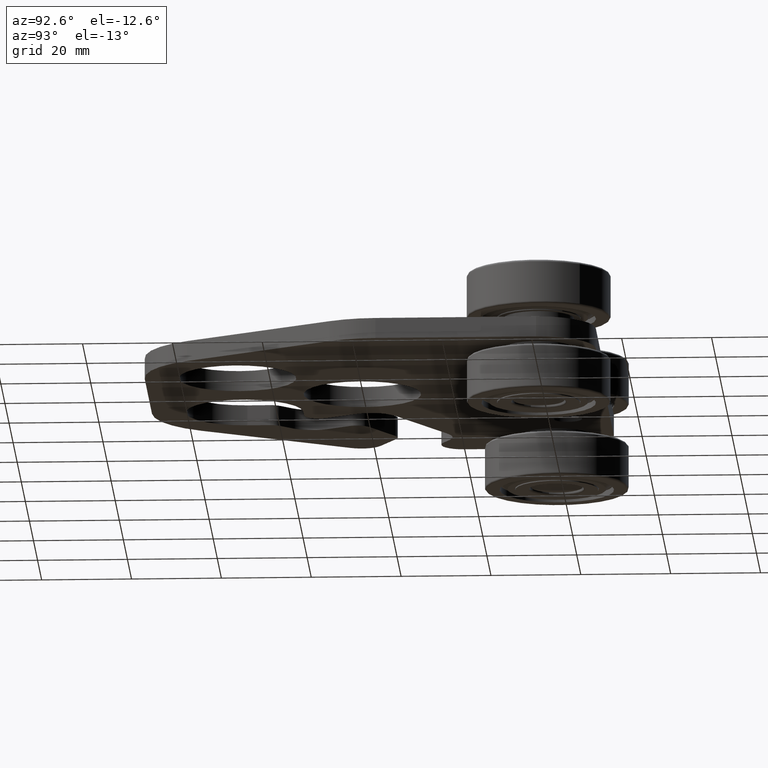
[diagram: clean part render]
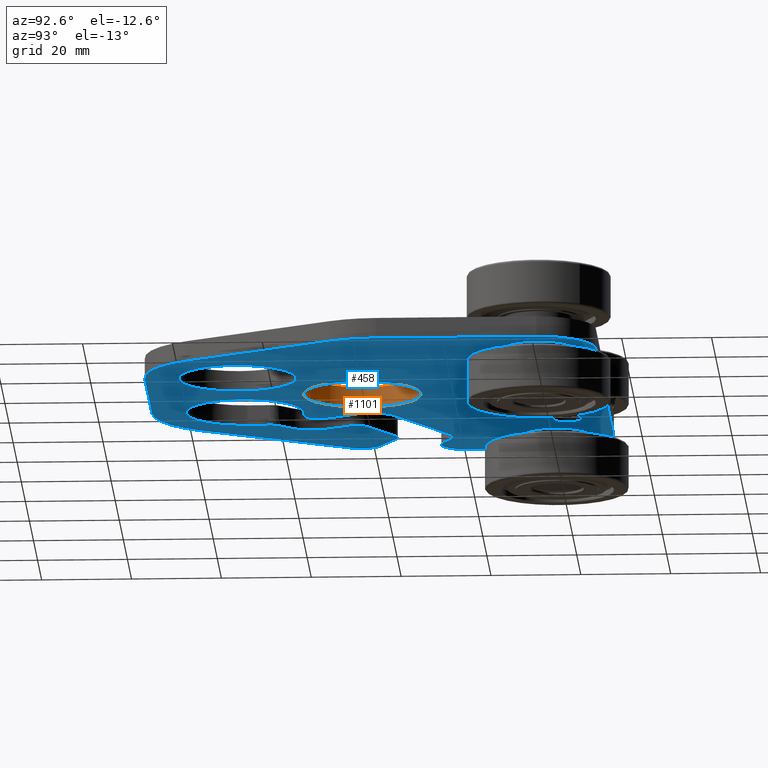
[diagram: same view with the hole feature highlighted: cylindrical wall and planar end face, labeled with their STEP entity ids]
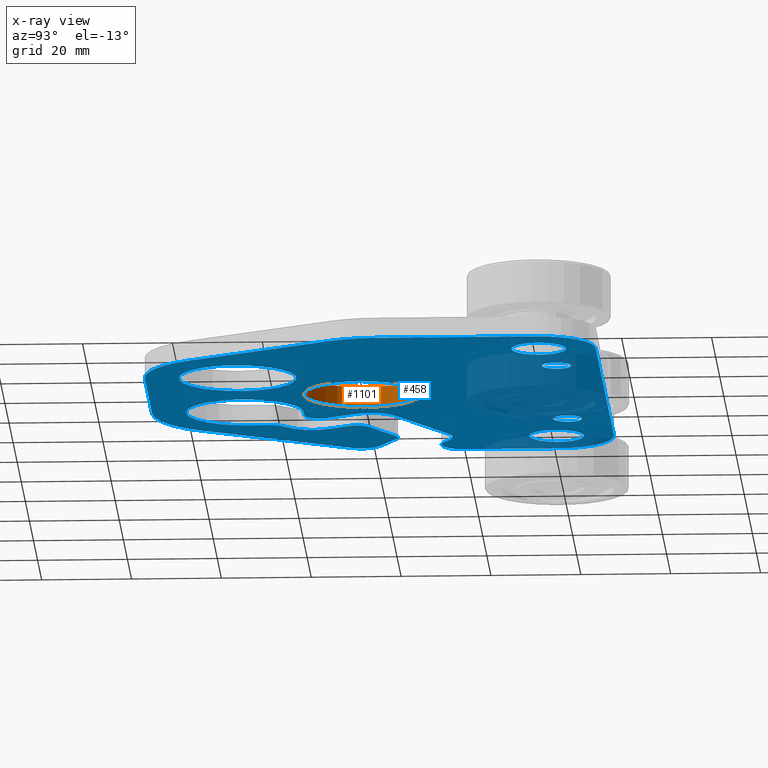
[diagram: x-ray of the same camera — body ghosted, the hole faces saturated]
A machine part, auxiliary view. The highlighted faces form one hole feature of diameter 26.162 mm: the cylindrical wall (entity #1101, orange) and its adjacent planar end face (entity #458, blue) — they share a circular edge in the B-rep.
The next image is the same camera in x-ray (body ghosted, the hole faces saturated) — the bore reads through the body.
Wall:
#436=CARTESIAN_POINT('',(0.515,-0.125,0.0));
#437=VERTEX_POINT('',#436);
#438=CARTESIAN_POINT('',(0.0,-0.125,0.0));
#439=DIRECTION('',(0.0,0.0,1.0));
#440=DIRECTION('',(-1.0,0.0,0.0));
#441=AXIS2_PLACEMENT_3D('',#438,#439,#440);
#442=CIRCLE('',#441,0.515);
#443=EDGE_CURVE('',#437,#437,#442,.T.);
#1082=CARTESIAN_POINT('',(0.0,-0.125,0.0));
#1083=DIRECTION('',(0.0,0.0,1.0));
#1084=DIRECTION('',(-1.0,0.0,0.0));
#1085=AXIS2_PLACEMENT_3D('',#1082,#1083,#1084);
#1086=CYLINDRICAL_SURFACE('',#1085,0.515);
#1087=CARTESIAN_POINT('',(0.515,-0.125,0.179));
#1088=VERTEX_POINT('',#1087);
#1089=CARTESIAN_POINT('',(0.0,-0.125,0.179));
#1090=DIRECTION('',(0.0,0.0,-1.0));
#1091=DIRECTION('',(-1.0,0.0,0.0));
#1092=AXIS2_PLACEMENT_3D('',#1089,#1090,#1091);
#1093=CIRCLE('',#1092,0.515);
#1094=EDGE_CURVE('',#1088,#1088,#1093,.T.);
#1095=ORIENTED_EDGE('',*,*,#1094,.F.);
#1096=EDGE_LOOP('',(#1095));
#1097=FACE_OUTER_BOUND('',#1096,.T.);
#1098=ORIENTED_EDGE('',*,*,#443,.F.);
#1099=EDGE_LOOP('',(#1098));
#1100=FACE_BOUND('',#1099,.T.);
#1101=ADVANCED_FACE('',(#1097,#1100),#1086,.F.);
End face:
#90=CARTESIAN_POINT('',(2.141136580732799,-0.313475448869807,0.0));
#91=VERTEX_POINT('',#90);
#98=CARTESIAN_POINT('',(2.25,0.092656240161457,0.0));
#99=VERTEX_POINT('',#98);
#100=CARTESIAN_POINT('',(1.437999999999999,0.092656240161458,0.0));
#101=DIRECTION('',(0.0,0.0,1.0));
#102=DIRECTION('',(0.965901586516694,-0.258909492225628,0.0));
#103=AXIS2_PLACEMENT_3D('',#100,#101,#102);
#104=CIRCLE('',#103,0.812);
#105=EDGE_CURVE('',#91,#99,#104,.T.);
#122=CARTESIAN_POINT('',(2.25,1.499999999999999,0.0));
#123=VERTEX_POINT('',#122);
#124=CARTESIAN_POINT('',(2.25,1.499999999999999,0.0));
#125=DIRECTION('',(0.0,-1.0,0.0));
#126=VECTOR('',#125,1.407343759838542);
#127=LINE('',#124,#126);
#128=EDGE_CURVE('',#123,#99,#127,.T.);
#147=CARTESIAN_POINT('',(-0.338697656552065,-0.003351619278209,0.0));
#148=DIRECTION('',(0.0,0.0,1.0));
#149=DIRECTION('',(1.0,0.0,0.0));
#150=AXIS2_PLACEMENT_3D('',#147,#148,#149);
#151=PLANE('',#150);
#152=ORIENTED_EDGE('',*,*,#105,.F.);
#153=CARTESIAN_POINT('',(1.401429536415542,-1.594131689031264,0.0));
#154=VERTEX_POINT('',#153);
#155=CARTESIAN_POINT('',(2.141136580732799,-0.313475448869807,0.0));
#156=DIRECTION('',(-0.500162178609932,-0.865931749670935,0.0));
#157=VECTOR('',#156,1.478934385588844);
#158=LINE('',#155,#157);
#159=EDGE_CURVE('',#91,#154,#158,.T.);
#160=ORIENTED_EDGE('',*,*,#159,.T.);
#161=CARTESIAN_POINT('',(0.698292955682743,-1.999999999999999,0.0));
#162=VERTEX_POINT('',#161);
#163=CARTESIAN_POINT('',(0.698292955682742,-1.187999999999999,0.0));
#164=DIRECTION('',(0.0,0.0,1.0));
#165=DIRECTION('',(0.499918904118492,-0.866072219451106,0.0));
#166=AXIS2_PLACEMENT_3D('',#163,#164,#165);
#167=CIRCLE('',#166,0.812);
#168=EDGE_CURVE('',#162,#154,#167,.T.);
#169=ORIENTED_EDGE('',*,*,#168,.F.);
#170=CARTESIAN_POINT('',(-0.701954139889034,-2.0,0.0));
#171=VERTEX_POINT('',#170);
#172=CARTESIAN_POINT('',(0.698292955682743,-2.0,0.0));
#173=DIRECTION('',(-1.0,0.0,0.0));
#174=VECTOR('',#173,1.400247095571777);
#175=LINE('',#172,#174);
#176=EDGE_CURVE('',#162,#171,#175,.T.);
#177=ORIENTED_EDGE('',*,*,#176,.T.);
#178=CARTESIAN_POINT('',(-1.402322155518825,-1.598887627804476,0.0));
#179=VERTEX_POINT('',#178);
#180=CARTESIAN_POINT('',(-0.701954139889035,-1.188,0.0));
#181=DIRECTION('',(0.0,0.0,1.0));
#182=DIRECTION('',(-0.496981264201868,-0.867761270760751,0.0));
#183=AXIS2_PLACEMENT_3D('',#180,#181,#182);
#184=CIRCLE('',#183,0.812);
#185=EDGE_CURVE('',#179,#171,#184,.T.);
#186=ORIENTED_EDGE('',*,*,#185,.F.);
#187=CARTESIAN_POINT('',(-2.152791142125297,-0.319694876857528,0.0));
#188=VERTEX_POINT('',#187);
#189=CARTESIAN_POINT('',(-1.402322155518825,-1.598887627804476,0.0));
#190=DIRECTION('',(-0.506019246064626,0.862522186736195,0.0));
#191=VECTOR('',#190,1.483083879601341);
#192=LINE('',#189,#191);
#193=EDGE_CURVE('',#179,#188,#192,.T.);
#194=ORIENTED_EDGE('',*,*,#193,.T.);
#195=CARTESIAN_POINT('',(-2.082244342010478,-0.060392342841847,0.0));
#196=VERTEX_POINT('',#195);
#197=CARTESIAN_POINT('',(-1.990636971018892,-0.224563258597378,0.0));
#198=DIRECTION('',(0.0,0.0,1.0));
#199=DIRECTION('',(-0.964926180845891,0.262521362022529,0.0));
#200=AXIS2_PLACEMENT_3D('',#197,#198,#199);
#201=CIRCLE('',#200,0.188);
#202=EDGE_CURVE('',#196,#188,#201,.T.);
#203=ORIENTED_EDGE('',*,*,#202,.F.);
#204=CARTESIAN_POINT('',(-1.811926201531746,0.090445179545285,0.0));
#205=VERTEX_POINT('',#204);
#206=CARTESIAN_POINT('',(-2.082244342010478,-0.060392342841847,0.0));
#207=DIRECTION('',(0.873249551891125,0.487273249955248,0.0));
#208=VECTOR('',#207,0.30955428478987);
#209=LINE('',#206,#208);
#210=EDGE_CURVE('',#196,#205,#209,.T.);
#211=ORIENTED_EDGE('',*,*,#210,.T.);
#212=CARTESIAN_POINT('',(-1.688569066809053,0.089572179010027,0.0));
#213=VERTEX_POINT('',#212);
#214=CARTESIAN_POINT('',(-1.751017045287341,-0.018711014441105,0.0));
#215=DIRECTION('',(0.0,0.0,1.0));
#216=DIRECTION('',(0.007076839748981,0.999974958856054,0.0));
#217=AXIS2_PLACEMENT_3D('',#214,#215,#216);
#218=CIRCLE('',#217,0.125);
#219=EDGE_CURVE('',#213,#205,#218,.T.);
#220=ORIENTED_EDGE('',*,*,#219,.F.);
#221=CARTESIAN_POINT('',(-1.317247552207251,-0.124572576176225,0.0));
#222=VERTEX_POINT('',#221);
#223=CARTESIAN_POINT('',(-1.688569066809053,0.089572179010027,0.0));
#224=DIRECTION('',(0.86626554760906,-0.499583827826297,0.0));
#225=VECTOR('',#224,0.42864629169043);
#226=LINE('',#223,#225);
#227=EDGE_CURVE('',#213,#222,#226,.T.);
#228=ORIENTED_EDGE('',*,*,#227,.T.);
#229=CARTESIAN_POINT('',(-1.271391785064688,-0.295268097612254,0.0));
#230=VERTEX_POINT('',#229);
#231=CARTESIAN_POINT('',(-1.379695530685538,-0.232855769627357,0.0));
#232=DIRECTION('',(0.0,0.0,1.0));
#233=DIRECTION('',(0.96575866402447,0.259442099246964,0.0));
#234=AXIS2_PLACEMENT_3D('',#231,#232,#233);
#235=CIRCLE('',#234,0.125);
#236=EDGE_CURVE('',#230,#222,#235,.T.);
#237=ORIENTED_EDGE('',*,*,#236,.F.);
#238=CARTESIAN_POINT('',(-1.385120899541725,-0.492621560969464,0.0));
#239=VERTEX_POINT('',#238);
#240=CARTESIAN_POINT('',(-1.271391785064688,-0.295268097612254,0.0));
#241=DIRECTION('',(-0.499298623879171,-0.866429964966798,0.0));
#242=VECTOR('',#241,0.227777744696045);
#243=LINE('',#240,#242);
#244=EDGE_CURVE('',#230,#239,#243,.T.);
#245=ORIENTED_EDGE('',*,*,#244,.T.);
#246=CARTESIAN_POINT('',(-1.344972446331923,-0.794539999712277,0.0));
#247=VERTEX_POINT('',#246);
#248=CARTESIAN_POINT('',(-1.168513408300026,-0.617446216939257,0.0));
#249=DIRECTION('',(0.0,0.0,-1.0));
#250=DIRECTION('',(-0.991274008714217,-0.131817448191223,0.0));
#251=AXIS2_PLACEMENT_3D('',#248,#249,#250);
#252=CIRCLE('',#251,0.25);
#253=EDGE_CURVE('',#247,#239,#252,.T.);
#254=ORIENTED_EDGE('',*,*,#253,.F.);
#255=CARTESIAN_POINT('',(-1.23877048098405,-0.900361312854602,0.0));
#256=VERTEX_POINT('',#255);
#257=CARTESIAN_POINT('',(-1.344972446331923,-0.794539999712277,0.0));
#258=DIRECTION('',(0.708375131092078,-0.705836152127589,0.0));
#259=VECTOR('',#258,0.149923339607003);
#260=LINE('',#257,#259);
#261=EDGE_CURVE('',#247,#256,#260,.T.);
#262=ORIENTED_EDGE('',*,*,#261,.T.);
#263=CARTESIAN_POINT('',(-1.201999999999999,-0.988908204241111,0.0));
#264=VERTEX_POINT('',#263);
#265=CARTESIAN_POINT('',(-1.326999999999999,-0.988908204241111,0.0));
#266=DIRECTION('',(0.0,0.0,1.0));
#267=DIRECTION('',(0.923535638762141,0.383512612486481,0.0));
#268=AXIS2_PLACEMENT_3D('',#265,#266,#267);
#269=CIRCLE('',#268,0.125);
#270=EDGE_CURVE('',#264,#256,#269,.T.);
#271=ORIENTED_EDGE('',*,*,#270,.F.);
#272=CARTESIAN_POINT('',(-1.201999999999999,-1.187,0.0));
#273=VERTEX_POINT('',#272);
#274=CARTESIAN_POINT('',(-1.201999999999999,-0.988908204241111,0.0));
#275=DIRECTION('',(0.0,-1.0,0.0));
#276=VECTOR('',#275,0.198091795758889);
#277=LINE('',#274,#276);
#278=EDGE_CURVE('',#264,#273,#277,.T.);
#279=ORIENTED_EDGE('',*,*,#278,.T.);
#280=CARTESIAN_POINT('',(-0.686999999999999,-0.672,0.0));
#281=VERTEX_POINT('',#280);
#282=CARTESIAN_POINT('',(-0.686999999999999,-1.187,0.0));
#283=DIRECTION('',(0.0,0.0,1.0));
#284=DIRECTION('',(-1.0,0.0,0.0));
#285=AXIS2_PLACEMENT_3D('',#282,#283,#284);
#286=CIRCLE('',#285,0.515);
#287=EDGE_CURVE('',#273,#281,#286,.T.);
#288=ORIENTED_EDGE('',*,*,#287,.T.);
#289=CARTESIAN_POINT('',(-0.838487895917298,-0.672,0.0));
#290=VERTEX_POINT('',#289);
#291=CARTESIAN_POINT('',(-0.686999999999999,-0.672,0.0));
#292=DIRECTION('',(-1.0,0.0,0.0));
#293=VECTOR('',#292,0.151487895917299);
#294=LINE('',#291,#293);
#295=EDGE_CURVE('',#281,#290,#294,.T.);
#296=ORIENTED_EDGE('',*,*,#295,.T.);
#297=CARTESIAN_POINT('',(-0.946739633106205,-0.484497508884976,0.0));
#298=VERTEX_POINT('',#297);
#299=CARTESIAN_POINT('',(-0.838487895917298,-0.547,0.0));
#300=DIRECTION('',(0.0,0.0,1.0));
#301=DIRECTION('',(-0.866031156749049,-0.499990035440612,0.0));
#302=AXIS2_PLACEMENT_3D('',#299,#300,#301);
#303=CIRCLE('',#302,0.125);
#304=EDGE_CURVE('',#298,#290,#303,.T.);
#305=ORIENTED_EDGE('',*,*,#304,.F.);
#306=CARTESIAN_POINT('',(-0.79203126722232,-0.216548998900514,0.0));
#307=VERTEX_POINT('',#306);
#308=CARTESIAN_POINT('',(-0.946739633106205,-0.484497508884976,0.0));
#309=DIRECTION('',(0.500019928920192,0.866013897511262,0.0));
#310=VECTOR('',#309,0.309404399576599);
#311=LINE('',#308,#310);
#312=EDGE_CURVE('',#298,#307,#311,.T.);
#313=ORIENTED_EDGE('',*,*,#312,.T.);
#314=CARTESIAN_POINT('',(-0.883575281869442,0.124985735150879,0.0));
#315=VERTEX_POINT('',#314);
#316=CARTESIAN_POINT('',(-1.008534741600135,-0.091544016670466,0.0));
#317=DIRECTION('',(0.0,0.0,-1.0));
#318=DIRECTION('',(0.965904570718138,0.258898358947697,0.0));
#319=AXIS2_PLACEMENT_3D('',#316,#317,#318);
#320=CIRCLE('',#319,0.25);
#321=EDGE_CURVE('',#315,#307,#320,.T.);
#322=ORIENTED_EDGE('',*,*,#321,.F.);
#323=CARTESIAN_POINT('',(-1.624943190820732,0.552829634591836,0.0));
#324=VERTEX_POINT('',#323);
#325=CARTESIAN_POINT('',(-0.883575281869442,0.124985735150879,0.0));
#326=DIRECTION('',(-0.86611900728538,0.499837838922772,0.0));
#327=VECTOR('',#326,0.855965407426989);
#328=LINE('',#325,#327);
#329=EDGE_CURVE('',#315,#324,#328,.T.);
#330=ORIENTED_EDGE('',*,*,#329,.T.);
#331=CARTESIAN_POINT('',(-1.8750081091671,0.552745312901416,0.0));
#332=VERTEX_POINT('',#331);
#333=CARTESIAN_POINT('',(-1.749902650551425,0.33629988277049,0.0));
#334=DIRECTION('',(0.0,0.0,-1.0));
#335=DIRECTION('',(-0.000337199180849,0.999999943148355,0.0));
#336=AXIS2_PLACEMENT_3D('',#333,#334,#335);
#337=CIRCLE('',#336,0.25);
#338=EDGE_CURVE('',#332,#324,#337,.T.);
#339=ORIENTED_EDGE('',*,*,#338,.F.);
#340=CARTESIAN_POINT('',(-1.967920695121012,0.499041838220055,0.0));
#341=VERTEX_POINT('',#340);
#342=CARTESIAN_POINT('',(-1.8750081091671,0.552745312901416,0.0));
#343=DIRECTION('',(-0.865781720523703,-0.500421834462703,0.0));
#344=VECTOR('',#343,0.107316409842552);
#345=LINE('',#342,#344);
#346=EDGE_CURVE('',#332,#341,#345,.T.);
#347=ORIENTED_EDGE('',*,*,#346,.T.);
#348=CARTESIAN_POINT('',(-2.25,0.661808801678512,0.0));
#349=VERTEX_POINT('',#348);
#350=CARTESIAN_POINT('',(-2.061999999999999,0.661808801678512,0.0));
#351=DIRECTION('',(0.0,0.0,1.0));
#352=DIRECTION('',(-0.499789038263797,-0.866147168344588,0.0));
#353=AXIS2_PLACEMENT_3D('',#350,#351,#352);
#354=CIRCLE('',#353,0.188);
#355=EDGE_CURVE('',#349,#341,#354,.T.);
#356=ORIENTED_EDGE('',*,*,#355,.F.);
#357=CARTESIAN_POINT('',(-2.25,1.5,0.0));
#358=VERTEX_POINT('',#357);
#359=CARTESIAN_POINT('',(-2.25,0.661808801678512,0.0));
#360=DIRECTION('',(0.0,1.0,0.0));
#361=VECTOR('',#360,0.838191198321488);
#362=LINE('',#359,#361);
#363=EDGE_CURVE('',#349,#358,#362,.T.);
#364=ORIENTED_EDGE('',*,*,#363,.T.);
#365=CARTESIAN_POINT('',(-1.75,2.0,0.0));
#366=VERTEX_POINT('',#365);
#367=CARTESIAN_POINT('',(-1.75,1.5,0.0));
#368=DIRECTION('',(0.0,0.0,1.0));
#369=DIRECTION('',(-0.707106781186547,0.707106781186548,0.0));
#370=AXIS2_PLACEMENT_3D('',#367,#368,#369);
#371=CIRCLE('',#370,0.5);
#372=EDGE_CURVE('',#366,#358,#371,.T.);
#373=ORIENTED_EDGE('',*,*,#372,.F.);
#374=CARTESIAN_POINT('',(1.750000000000001,1.999999999999999,0.0));
#375=VERTEX_POINT('',#374);
#376=CARTESIAN_POINT('',(-1.749999999999999,2.0,0.0));
#377=DIRECTION('',(1.0,0.0,0.0));
#378=VECTOR('',#377,3.5);
#379=LINE('',#376,#378);
#380=EDGE_CURVE('',#366,#375,#379,.T.);
#381=ORIENTED_EDGE('',*,*,#380,.T.);
#382=CARTESIAN_POINT('',(1.75,1.5,0.0));
#383=DIRECTION('',(0.0,0.0,1.0));
#384=DIRECTION('',(0.707106781186548,0.707106781186548,0.0));
#385=AXIS2_PLACEMENT_3D('',#382,#383,#384);
#386=CIRCLE('',#385,0.5);
#387=EDGE_CURVE('',#123,#375,#386,.T.);
#388=ORIENTED_EDGE('',*,*,#387,.F.);
#389=ORIENTED_EDGE('',*,*,#128,.T.);
#390=EDGE_LOOP('',(#152,#160,#169,#177,#186,#194,#203,#211,#220,#228,#237,#245,#254,#262,#271,#279,#288,#296,#305,#313,#322,#330,#339,#347,#356,#364,#373,#381,#388,#389));
#391=FACE_OUTER_BOUND('',#390,.T.);
#392=CARTESIAN_POINT('',(-0.9345,1.625,0.0));
#393=VERTEX_POINT('',#392);
#394=CARTESIAN_POINT('',(-1.062,1.625,0.0));
#395=DIRECTION('',(0.0,0.0,1.0));
#396=DIRECTION('',(-1.0,0.0,0.0));
#397=AXIS2_PLACEMENT_3D('',#394,#395,#396);
#398=CIRCLE('',#397,0.1275);
#399=EDGE_CURVE('',#393,#393,#398,.T.);
#400=ORIENTED_EDGE('',*,*,#399,.T.);
#401=EDGE_LOOP('',(#400));
#402=FACE_BOUND('',#401,.T.);
#403=CARTESIAN_POINT('',(1.1905,1.625,0.0));
#404=VERTEX_POINT('',#403);
#405=CARTESIAN_POINT('',(1.063,1.625,0.0));
#406=DIRECTION('',(0.0,0.0,1.0));
#407=DIRECTION('',(-1.0,0.0,0.0));
#408=AXIS2_PLACEMENT_3D('',#405,#406,#407);
#409=CIRCLE('',#408,0.1275);
#410=EDGE_CURVE('',#404,#404,#409,.T.);
#411=ORIENTED_EDGE('',*,*,#410,.T.);
#412=EDGE_LOOP('',(#411));
#413=FACE_BOUND('',#412,.T.);
#414=CARTESIAN_POINT('',(1.989500000000001,1.500000000000001,0.0));
#415=VERTEX_POINT('',#414);
#416=CARTESIAN_POINT('',(1.750000000000001,1.500000000000001,0.0));
#417=DIRECTION('',(0.0,0.0,1.0));
#418=DIRECTION('',(-1.0,0.0,0.0));
#419=AXIS2_PLACEMENT_3D('',#416,#417,#418);
#420=CIRCLE('',#419,0.2395);
#421=EDGE_CURVE('',#415,#415,#420,.T.);
#422=ORIENTED_EDGE('',*,*,#421,.T.);
#423=EDGE_LOOP('',(#422));
#424=FACE_BOUND('',#423,.T.);
#425=CARTESIAN_POINT('',(-1.5105,1.500000000000001,0.0));
#426=VERTEX_POINT('',#425);
#427=CARTESIAN_POINT('',(-1.75,1.500000000000001,0.0));
#428=DIRECTION('',(0.0,0.0,1.0));
#429=DIRECTION('',(-1.0,0.0,0.0));
#430=AXIS2_PLACEMENT_3D('',#427,#428,#429);
#431=CIRCLE('',#430,0.2395);
#432=EDGE_CURVE('',#426,#426,#431,.T.);
#433=ORIENTED_EDGE('',*,*,#432,.T.);
#434=EDGE_LOOP('',(#433));
#435=FACE_BOUND('',#434,.T.);
#436=CARTESIAN_POINT('',(0.515,-0.125,0.0));
#437=VERTEX_POINT('',#436);
#438=CARTESIAN_POINT('',(0.0,-0.125,0.0));
#439=DIRECTION('',(0.0,0.0,1.0));
#440=DIRECTION('',(-1.0,0.0,0.0));
#441=AXIS2_PLACEMENT_3D('',#438,#439,#440);
#442=CIRCLE('',#441,0.515);
#443=EDGE_CURVE('',#437,#437,#442,.T.);
#444=ORIENTED_EDGE('',*,*,#443,.T.);
#445=EDGE_LOOP('',(#444));
#446=FACE_BOUND('',#445,.T.);
#447=CARTESIAN_POINT('',(1.203000000000001,-1.187,0.0));
#448=VERTEX_POINT('',#447);
#449=CARTESIAN_POINT('',(0.688000000000001,-1.187,0.0));
#450=DIRECTION('',(0.0,0.0,1.0));
#451=DIRECTION('',(-1.0,0.0,0.0));
#452=AXIS2_PLACEMENT_3D('',#449,#450,#451);
#453=CIRCLE('',#452,0.515);
#454=EDGE_CURVE('',#448,#448,#453,.T.);
#455=ORIENTED_EDGE('',*,*,#454,.T.);
#456=EDGE_LOOP('',(#455));
#457=FACE_BOUND('',#456,.T.);
#458=ADVANCED_FACE('',(#391,#402,#413,#424,#435,#446,#457),#151,.F.);